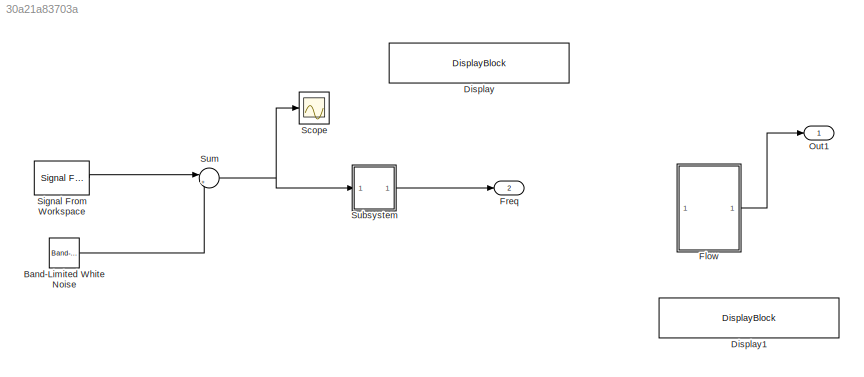
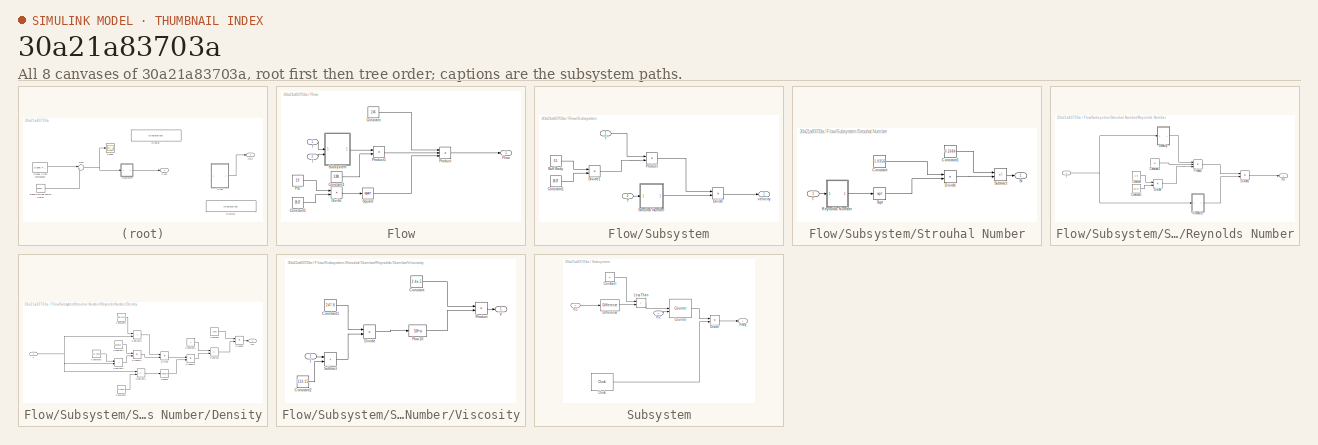
[diagram: thumbnail index - all 8 canvases of the model, root first then tree order]
MODEL slx_30a21a83703a
KIND model
CONFIG AbsTol = auto
CONFIG EnableMultiTasking = off
CONFIG FixedStep = auto
CONFIG MaxStep = auto
CONFIG MinStep = auto
CONFIG RelTol = 1e-3
CONFIG SampleTimeConstraint = Unconstrained
CONFIG SolverName = VariableStepAuto
CONFIG StartTime = 0.0
CONFIG StopTime = .1
BLOCK [Reference] Band-Limited White Noise  REF=simulink/Sources/Band-Limited
White Noise
  SourceBlock = simulink/Sources/Band-Limited\nWhite Noise
  SourceType = Band-Limited White Noise.
BLOCK [DisplayBlock] Display
  LabelPosition = Hide
  Transparency = 1
BLOCK [DisplayBlock] Display1
  LabelPosition = Hide
  Transparency = 1
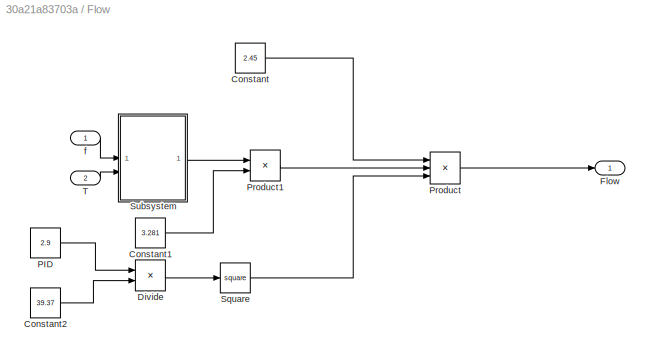
BLOCK [SubSystem] Flow
BLOCK [Constant] Flow/Constant
  Value = 2.45
BLOCK [Constant] Flow/Constant1
  Value = 3.281
BLOCK [Constant] Flow/Constant2
  Value = 39.37
BLOCK [Product] Flow/Divide
  Inputs = */
BLOCK [Outport] Flow/Flow
BLOCK [Constant] Flow/PID 
  Value = 2.9
BLOCK [Product] Flow/Product
  Inputs = 3
BLOCK [Product] Flow/Product1
BLOCK [Math] Flow/Square
  Operator = square
BLOCK [SubSystem] Flow/Subsystem
BLOCK [Constant] Flow/Subsystem/Buff Body
  Value = 0.5
BLOCK [Constant] Flow/Subsystem/Constant1
  Value = 39.37
BLOCK [Product] Flow/Subsystem/Divide
  Inputs = */
BLOCK [Product] Flow/Subsystem/Divide1
  Inputs = */
BLOCK [Product] Flow/Subsystem/Product
BLOCK [SubSystem] Flow/Subsystem/Strouhal Number
BLOCK [Constant] Flow/Subsystem/Strouhal Number/Constant
  Value = 1.0356
BLOCK [Constant] Flow/Subsystem/Strouhal Number/Constant1
  Value = 0.2684
BLOCK [Product] Flow/Subsystem/Strouhal Number/Divide
  Inputs = */
BLOCK [SubSystem] Flow/Subsystem/Strouhal Number/Reynolds Number
BLOCK [Constant] Flow/Subsystem/Strouhal Number/Reynolds Number/Constant
  Value = 2.9
BLOCK [Constant] Flow/Subsystem/Strouhal Number/Reynolds Number/Constant1
  Value = 39.37
BLOCK [Constant] Flow/Subsystem/Strouhal Number/Reynolds Number/Constant2
  Value = 10
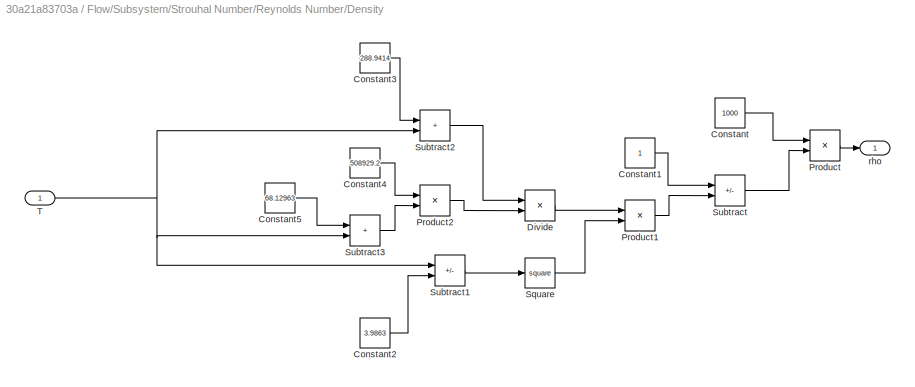
BLOCK [SubSystem] Flow/Subsystem/Strouhal Number/Reynolds Number/Density
BLOCK [Constant] Flow/Subsystem/Strouhal Number/Reynolds Number/Density/Constant
  Value = 1000
BLOCK [Constant] Flow/Subsystem/Strouhal Number/Reynolds Number/Density/Constant1
BLOCK [Constant] Flow/Subsystem/Strouhal Number/Reynolds Number/Density/Constant2
  Value = 3.9863
BLOCK [Constant] Flow/Subsystem/Strouhal Number/Reynolds Number/Density/Constant3
  Value = 288.9414
BLOCK [Constant] Flow/Subsystem/Strouhal Number/Reynolds Number/Density/Constant4
  Value = 508929.2
BLOCK [Constant] Flow/Subsystem/Strouhal Number/Reynolds Number/Density/Constant5
  Value = 68.12963
BLOCK [Product] Flow/Subsystem/Strouhal Number/Reynolds Number/Density/Divide
  Inputs = */
BLOCK [Product] Flow/Subsystem/Strouhal Number/Reynolds Number/Density/Product
BLOCK [Product] Flow/Subsystem/Strouhal Number/Reynolds Number/Density/Product1
BLOCK [Product] Flow/Subsystem/Strouhal Number/Reynolds Number/Density/Product2
BLOCK [Math] Flow/Subsystem/Strouhal Number/Reynolds Number/Density/Square
  Operator = square
BLOCK [Sum] Flow/Subsystem/Strouhal Number/Reynolds Number/Density/Subtract
  IconShape = rectangular
  Inputs = +-
BLOCK [Sum] Flow/Subsystem/Strouhal Number/Reynolds Number/Density/Subtract1
  IconShape = rectangular
  Inputs = +-
BLOCK [Sum] Flow/Subsystem/Strouhal Number/Reynolds Number/Density/Subtract2
  IconShape = rectangular
BLOCK [Sum] Flow/Subsystem/Strouhal Number/Reynolds Number/Density/Subtract3
  IconShape = rectangular
BLOCK [Inport] Flow/Subsystem/Strouhal Number/Reynolds Number/Density/T
BLOCK [Outport] Flow/Subsystem/Strouhal Number/Reynolds Number/Density/rho
BLOCK [Product] Flow/Subsystem/Strouhal Number/Reynolds Number/Divide
  Inputs = */
BLOCK [Product] Flow/Subsystem/Strouhal Number/Reynolds Number/Divide1
  Inputs = */
BLOCK [Product] Flow/Subsystem/Strouhal Number/Reynolds Number/Product
  Inputs = 3
BLOCK [Outport] Flow/Subsystem/Strouhal Number/Reynolds Number/Re
BLOCK [Inport] Flow/Subsystem/Strouhal Number/Reynolds Number/T
BLOCK [SubSystem] Flow/Subsystem/Strouhal Number/Reynolds Number/Viscosity
BLOCK [Constant] Flow/Subsystem/Strouhal Number/Reynolds Number/Viscosity/Constant
  Value = 2.4e-5
BLOCK [Constant] Flow/Subsystem/Strouhal Number/Reynolds Number/Viscosity/Constant1
  Value = 247.8
BLOCK [Constant] Flow/Subsystem/Strouhal Number/Reynolds Number/Viscosity/Constant2
  Value = 133.15
BLOCK [Product] Flow/Subsystem/Strouhal Number/Reynolds Number/Viscosity/Divide
  Inputs = */
BLOCK [Math] Flow/Subsystem/Strouhal Number/Reynolds Number/Viscosity/Pow10
  Operator = 10^u
  RndMeth = Zero
  SignedPower = on
BLOCK [Product] Flow/Subsystem/Strouhal Number/Reynolds Number/Viscosity/Product
BLOCK [Sum] Flow/Subsystem/Strouhal Number/Reynolds Number/Viscosity/Subtract
  IconShape = rectangular
BLOCK [Inport] Flow/Subsystem/Strouhal Number/Reynolds Number/Viscosity/T
  IconDisplay = Signal name
BLOCK [Outport] Flow/Subsystem/Strouhal Number/Reynolds Number/Viscosity/V
BLOCK [Sqrt] Flow/Subsystem/Strouhal Number/Sqrt
BLOCK [Outport] Flow/Subsystem/Strouhal Number/St
BLOCK [Sum] Flow/Subsystem/Strouhal Number/Subtract
  IconShape = rectangular
  Inputs = +-
BLOCK [Inport] Flow/Subsystem/Strouhal Number/T
BLOCK [Inport] Flow/Subsystem/T
  Port = 2
BLOCK [Inport] Flow/Subsystem/f
BLOCK [Outport] Flow/Subsystem/velocity
BLOCK [Inport] Flow/T
  Port = 2
BLOCK [Inport] Flow/f
BLOCK [Outport] Freq
  Port = 2
BLOCK [Outport] Out1
BLOCK [Scope] Scope
  Floating = off
  NumInputPorts = 1
  ScopeSpecificationString = Simulink.scopes.TimeScopeBlockCfg('CurrentConfiguration', extmgr.ConfigurationSet(extmgr.Configuration('Core','General UI',true),extmgr.Configuration('Core','Source UI',true),extmgr.Configuration('Sources','WiredSimulink',true),extmgr.Configuration('Visuals','Time Domain',true,'SerializedDisplays',{struct('MinYLimReal','-40938.49169','MaxYLimReal','40980.25831','YLabelReal','','MinYLimMag','   0.0...<+1383ch>
BLOCK [Reference] Signal From Workspace  REF=dspsrcs4/Signal From
Workspace
  SourceBlock = dspsrcs4/Signal From\nWorkspace
  SourceType = Signal From Workspace
BLOCK [SubSystem] Subsystem
BLOCK [Clock] Subsystem/Clock
  Decimation = 1
  DisplayTime = on
BLOCK [Constant] Subsystem/Constant
  Value = 0
BLOCK [Reference] Subsystem/Counter  REF=dspswit3/Counter
  SourceBlock = dspswit3/Counter
  SourceType = Counter
BLOCK [Reference] Subsystem/Difference  REF=simulink/Discrete/Difference
  SourceBlock = simulink/Discrete/Difference
  SourceType = Difference
BLOCK [Product] Subsystem/Divide
  Inputs = */
BLOCK [Outport] Subsystem/Freq
BLOCK [Inport] Subsystem/In1
BLOCK [Inport] Subsystem/In2
  Port = 2
BLOCK [RelationalOperator] Subsystem/Less Than
  InputSameDT = off
  Operator = <
  OutDataTypeStr = boolean
  RndMeth = Simplest
BLOCK [Sum] Sum
  Inputs = |++
LINE Band-Limited White Noise:1 -> Sum:2
LINE Flow/Constant1:1 -> Flow/Product1:2
LINE Flow/Constant2:1 -> Flow/Divide:2
LINE Flow/Constant:1 -> Flow/Product:1
LINE Flow/Divide:1 -> Flow/Square:1
LINE Flow/PID :1 -> Flow/Divide:1
LINE Flow/Product1:1 -> Flow/Product:2
LINE Flow/Product:1 -> Flow/Flow:1
LINE Flow/Square:1 -> Flow/Product:3
LINE Flow/Subsystem/Buff Body:1 -> Flow/Subsystem/Divide1:1
LINE Flow/Subsystem/Constant1:1 -> Flow/Subsystem/Divide1:2
LINE Flow/Subsystem/Divide1:1 -> Flow/Subsystem/Product:2
LINE Flow/Subsystem/Divide:1 -> Flow/Subsystem/velocity:1
LINE Flow/Subsystem/Product:1 -> Flow/Subsystem/Divide:1
LINE Flow/Subsystem/Strouhal Number/Constant1:1 -> Flow/Subsystem/Strouhal Number/Subtract:1
LINE Flow/Subsystem/Strouhal Number/Constant:1 -> Flow/Subsystem/Strouhal Number/Divide:1
LINE Flow/Subsystem/Strouhal Number/Divide:1 -> Flow/Subsystem/Strouhal Number/Subtract:2
LINE Flow/Subsystem/Strouhal Number/Reynolds Number/Constant1:1 -> Flow/Subsystem/Strouhal Number/Reynolds Number/Divide:2
LINE Flow/Subsystem/Strouhal Number/Reynolds Number/Constant2:1 -> Flow/Subsystem/Strouhal Number/Reynolds Number/Product:2
LINE Flow/Subsystem/Strouhal Number/Reynolds Number/Constant:1 -> Flow/Subsystem/Strouhal Number/Reynolds Number/Divide:1
LINE Flow/Subsystem/Strouhal Number/Reynolds Number/Density/Constant1:1 -> Flow/Subsystem/Strouhal Number/Reynolds Number/Density/Subtract:1
LINE Flow/Subsystem/Strouhal Number/Reynolds Number/Density/Constant2:1 -> Flow/Subsystem/Strouhal Number/Reynolds Number/Density/Subtract1:2
LINE Flow/Subsystem/Strouhal Number/Reynolds Number/Density/Constant3:1 -> Flow/Subsystem/Strouhal Number/Reynolds Number/Density/Subtract2:1
LINE Flow/Subsystem/Strouhal Number/Reynolds Number/Density/Constant4:1 -> Flow/Subsystem/Strouhal Number/Reynolds Number/Density/Product2:1
LINE Flow/Subsystem/Strouhal Number/Reynolds Number/Density/Constant5:1 -> Flow/Subsystem/Strouhal Number/Reynolds Number/Density/Subtract3:1
LINE Flow/Subsystem/Strouhal Number/Reynolds Number/Density/Constant:1 -> Flow/Subsystem/Strouhal Number/Reynolds Number/Density/Product:1
LINE Flow/Subsystem/Strouhal Number/Reynolds Number/Density/Divide:1 -> Flow/Subsystem/Strouhal Number/Reynolds Number/Density/Product1:1
LINE Flow/Subsystem/Strouhal Number/Reynolds Number/Density/Product1:1 -> Flow/Subsystem/Strouhal Number/Reynolds Number/Density/Subtract:2
LINE Flow/Subsystem/Strouhal Number/Reynolds Number/Density/Product2:1 -> Flow/Subsystem/Strouhal Number/Reynolds Number/Density/Divide:2
LINE Flow/Subsystem/Strouhal Number/Reynolds Number/Density/Product:1 -> Flow/Subsystem/Strouhal Number/Reynolds Number/Density/rho:1
LINE Flow/Subsystem/Strouhal Number/Reynolds Number/Density/Square:1 -> Flow/Subsystem/Strouhal Number/Reynolds Number/Density/Product1:2
LINE Flow/Subsystem/Strouhal Number/Reynolds Number/Density/Subtract1:1 -> Flow/Subsystem/Strouhal Number/Reynolds Number/Density/Square:1
LINE Flow/Subsystem/Strouhal Number/Reynolds Number/Density/Subtract2:1 -> Flow/Subsystem/Strouhal Number/Reynolds Number/Density/Divide:1
LINE Flow/Subsystem/Strouhal Number/Reynolds Number/Density/Subtract3:1 -> Flow/Subsystem/Strouhal Number/Reynolds Number/Density/Product2:2
LINE Flow/Subsystem/Strouhal Number/Reynolds Number/Density/Subtract:1 -> Flow/Subsystem/Strouhal Number/Reynolds Number/Density/Product:2
NET Flow/Subsystem/Strouhal Number/Reynolds Number/Density/T:1 -> Flow/Subsystem/Strouhal Number/Reynolds Number/Density/Subtract1:1, Flow/Subsystem/Strouhal Number/Reynolds Number/Density/Subtract2:2, Flow/Subsystem/Strouhal Number/Reynolds Number/Density/Subtract3:2
LINE Flow/Subsystem/Strouhal Number/Reynolds Number/Density:1 -> Flow/Subsystem/Strouhal Number/Reynolds Number/Product:1
LINE Flow/Subsystem/Strouhal Number/Reynolds Number/Divide1:1 -> Flow/Subsystem/Strouhal Number/Reynolds Number/Re:1
LINE Flow/Subsystem/Strouhal Number/Reynolds Number/Divide:1 -> Flow/Subsystem/Strouhal Number/Reynolds Number/Product:3
LINE Flow/Subsystem/Strouhal Number/Reynolds Number/Product:1 -> Flow/Subsystem/Strouhal Number/Reynolds Number/Divide1:1
NET Flow/Subsystem/Strouhal Number/Reynolds Number/T:1 -> Flow/Subsystem/Strouhal Number/Reynolds Number/Density:1, Flow/Subsystem/Strouhal Number/Reynolds Number/Viscosity:1
LINE Flow/Subsystem/Strouhal Number/Reynolds Number/Viscosity/Constant1:1 -> Flow/Subsystem/Strouhal Number/Reynolds Number/Viscosity/Divide:1
LINE Flow/Subsystem/Strouhal Number/Reynolds Number/Viscosity/Constant2:1 -> Flow/Subsystem/Strouhal Number/Reynolds Number/Viscosity/Subtract:2
LINE Flow/Subsystem/Strouhal Number/Reynolds Number/Viscosity/Constant:1 -> Flow/Subsystem/Strouhal Number/Reynolds Number/Viscosity/Product:1
LINE Flow/Subsystem/Strouhal Number/Reynolds Number/Viscosity/Divide:1 -> Flow/Subsystem/Strouhal Number/Reynolds Number/Viscosity/Pow10:1
LINE Flow/Subsystem/Strouhal Number/Reynolds Number/Viscosity/Pow10:1 -> Flow/Subsystem/Strouhal Number/Reynolds Number/Viscosity/Product:2
LINE Flow/Subsystem/Strouhal Number/Reynolds Number/Viscosity/Product:1 -> Flow/Subsystem/Strouhal Number/Reynolds Number/Viscosity/V:1
LINE Flow/Subsystem/Strouhal Number/Reynolds Number/Viscosity/Subtract:1 -> Flow/Subsystem/Strouhal Number/Reynolds Number/Viscosity/Divide:2
LINE Flow/Subsystem/Strouhal Number/Reynolds Number/Viscosity/T:1 -> Flow/Subsystem/Strouhal Number/Reynolds Number/Viscosity/Subtract:1
LINE Flow/Subsystem/Strouhal Number/Reynolds Number/Viscosity:1 -> Flow/Subsystem/Strouhal Number/Reynolds Number/Divide1:2
LINE Flow/Subsystem/Strouhal Number/Reynolds Number:1 -> Flow/Subsystem/Strouhal Number/Sqrt:1
LINE Flow/Subsystem/Strouhal Number/Sqrt:1 -> Flow/Subsystem/Strouhal Number/Divide:2
LINE Flow/Subsystem/Strouhal Number/Subtract:1 -> Flow/Subsystem/Strouhal Number/St:1
LINE Flow/Subsystem/Strouhal Number/T:1 -> Flow/Subsystem/Strouhal Number/Reynolds Number:1
LINE Flow/Subsystem/Strouhal Number:1 -> Flow/Subsystem/Divide:2
LINE Flow/Subsystem/T:1 -> Flow/Subsystem/Strouhal Number:1
LINE Flow/Subsystem/f:1 -> Flow/Subsystem/Product:1
LINE Flow/Subsystem:1 -> Flow/Product1:1
LINE Flow/T:1 -> Flow/Subsystem:2
LINE Flow/f:1 -> Flow/Subsystem:1
LINE Flow:1 -> Out1:1
LINE Signal From Workspace:1 -> Sum:1
LINE Subsystem/Clock:1 -> Subsystem/Divide:2
LINE Subsystem/Constant:1 -> Subsystem/Less Than:1
LINE Subsystem/Counter:1 -> Subsystem/Divide:1
LINE Subsystem/Difference:1 -> Subsystem/Less Than:2
LINE Subsystem/Divide:1 -> Subsystem/Freq:1
LINE Subsystem/In1:1 -> Subsystem/Difference:1
LINE Subsystem/In2:1 -> Subsystem/Counter:2
LINE Subsystem/Less Than:1 -> Subsystem/Counter:1
LINE Subsystem:1 -> Freq:1
NET Sum:1 -> Scope:1, Subsystem:1
note: NET lines group one-source signal fan-out (src -> all destinations, sorted); 1:1 wires keep LINE
